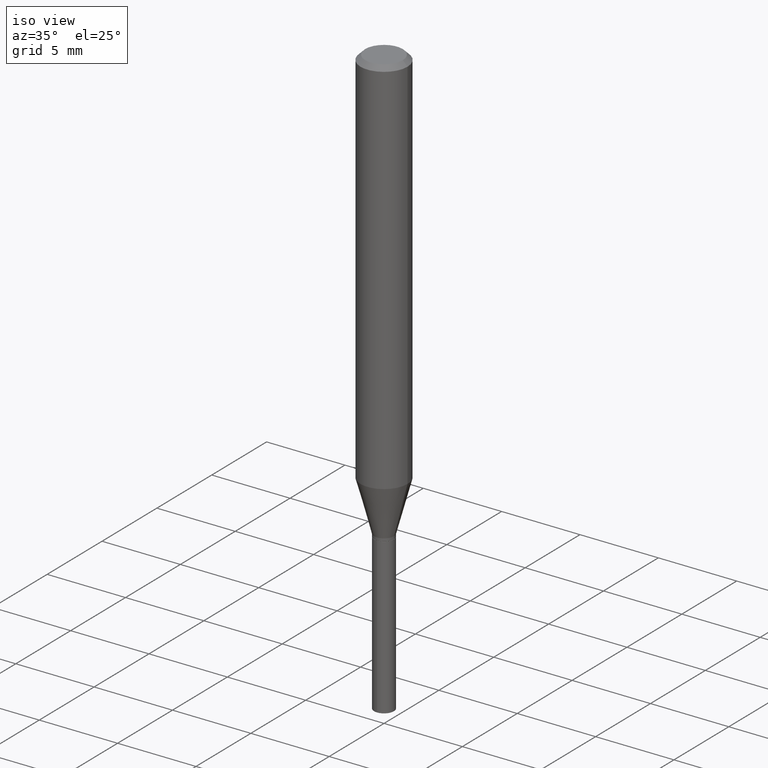
[diagram: clean part render]
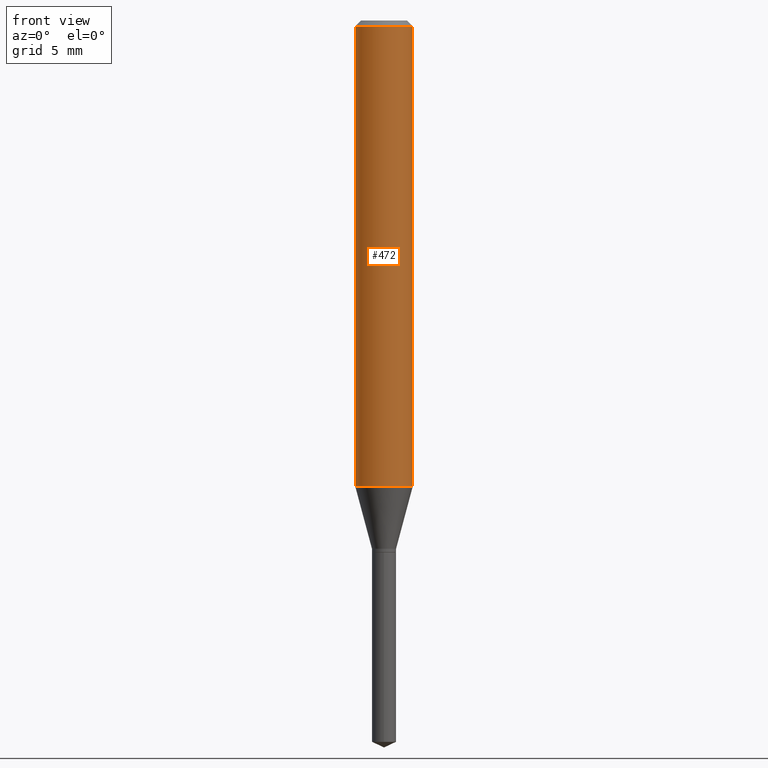
[diagram: tour spotlight — one face highlighted and labeled with its STEP entity id]
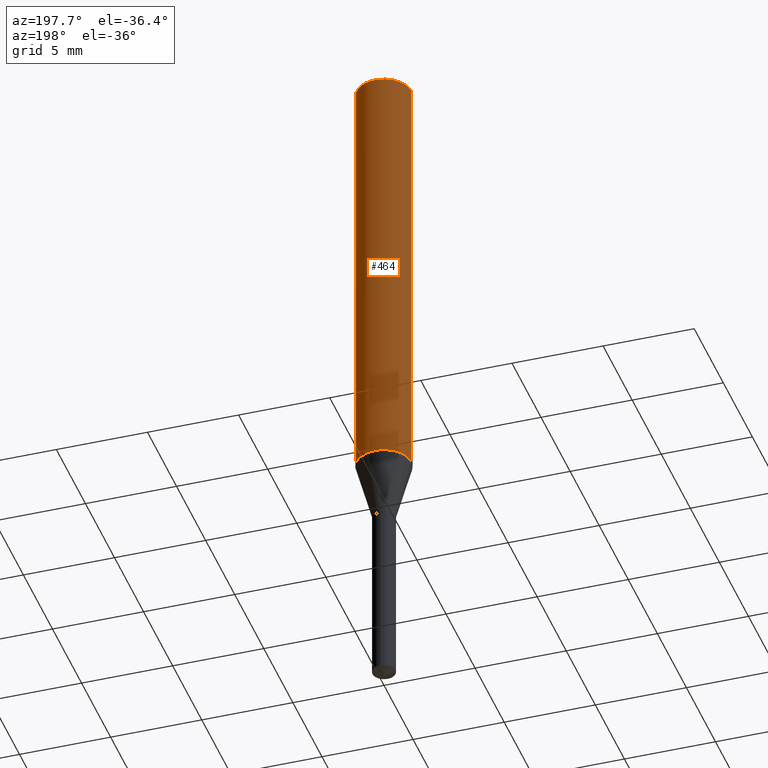
[diagram: tour spotlight — one face highlighted and labeled with its STEP entity id]
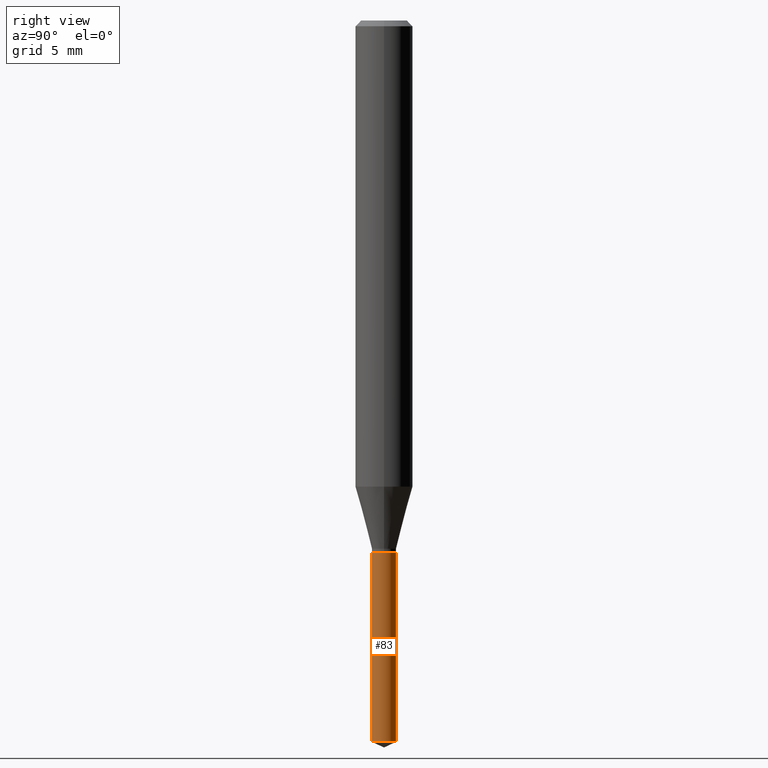
[diagram: tour spotlight — one face highlighted and labeled with its STEP entity id]
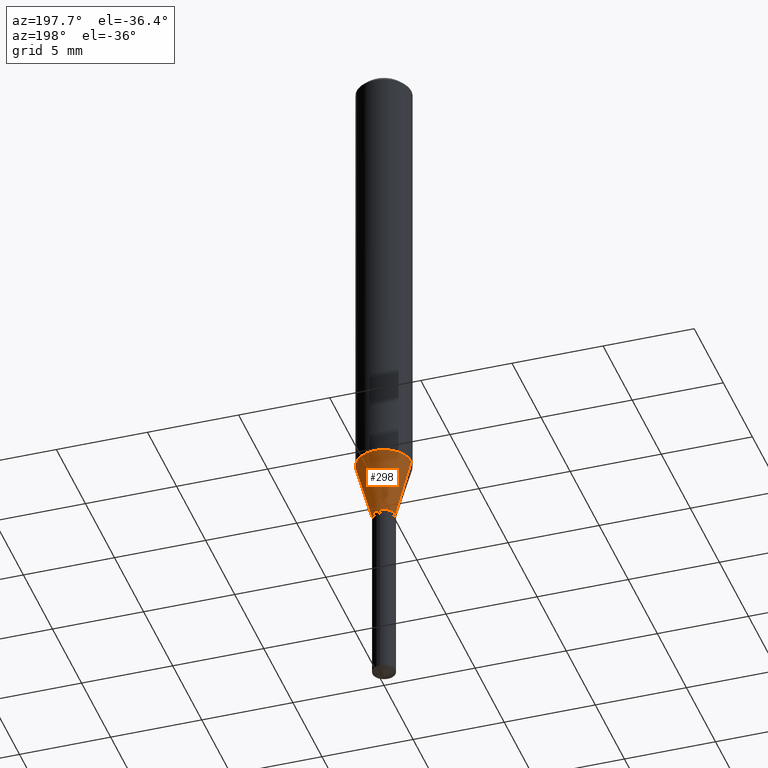
[diagram: tour spotlight — one face highlighted and labeled with its STEP entity id]
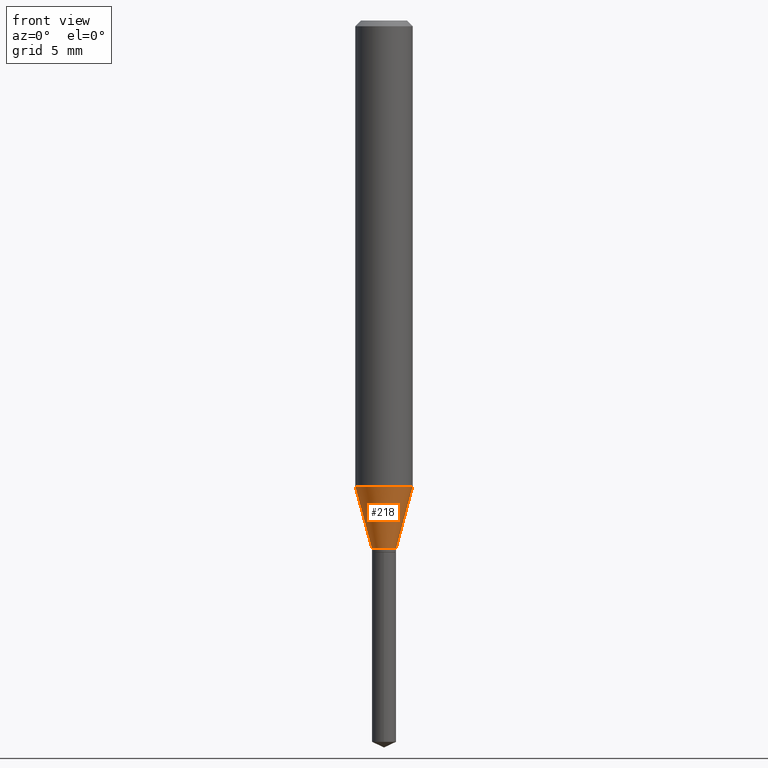
[diagram: tour spotlight — one face highlighted and labeled with its STEP entity id]
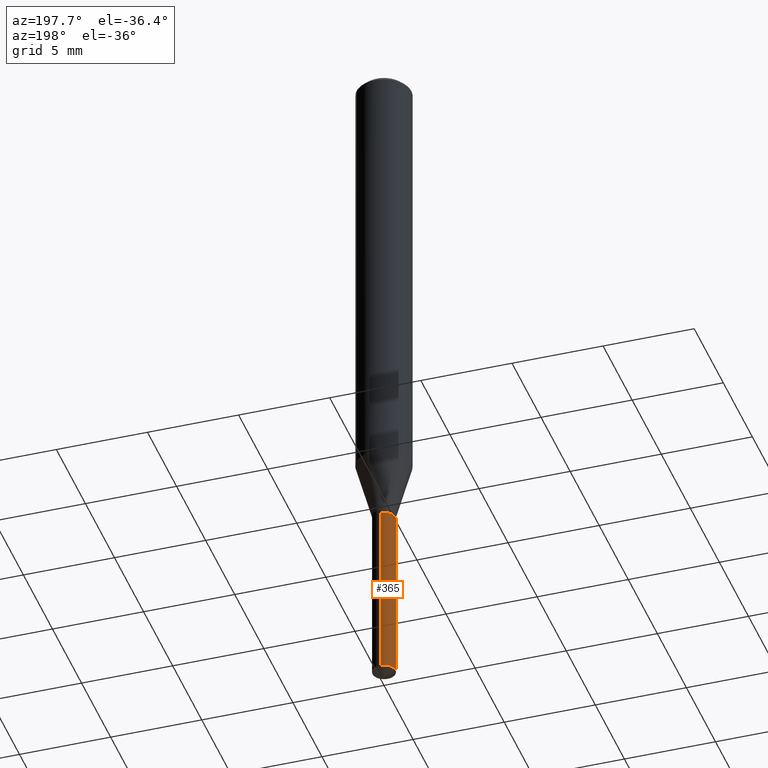
[diagram: tour spotlight — one face highlighted and labeled with its STEP entity id]
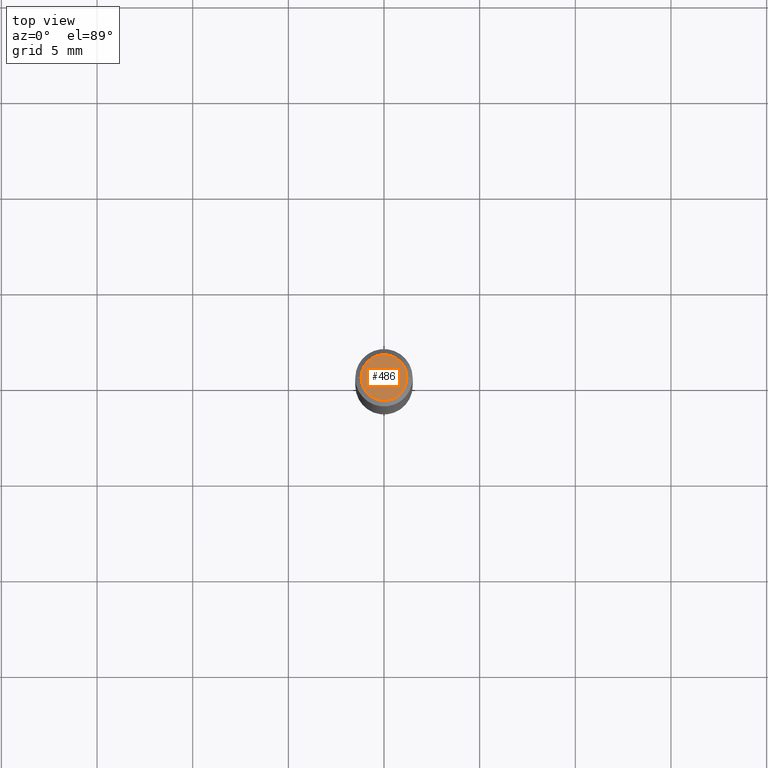
[diagram: tour spotlight — one face highlighted and labeled with its STEP entity id]
A machine part: a face-by-face anatomy tour. The part has 17 B-rep faces; the first image is the clean iso view, then the 7 largest visible faces are spotlighted one at a time (largest first), each with its STEP entity span.

Face 1 — front view, entity #472. In plain terms, the highlighted cylindrical surface (edge-blend (fillet) strip) has radius 1.4999 mm, axis along (-0, 0, 1).
Definition (entity closure, byte-faithful):
#9 = FACE_OUTER_BOUND ( 'NONE', #255, .T. ) ;
#14 = AXIS2_PLACEMENT_3D ( 'NONE', #457, #382, #122 ) ;
#27 = CIRCLE ( 'NONE', #220, 0.05904999999999999832 ) ;
#36 = CARTESIAN_POINT ( 'NONE',  ( 0.05904999999999999832, -4.535783407291118600E-16, -0.01181000000000007565 ) ) ;
#41 = DIRECTION ( 'NONE',  ( -2.445468806185136877E-29, 3.491481338843145188E-15, 1.000000000000000000 ) ) ;
#61 = AXIS2_PLACEMENT_3D ( 'NONE', #287, #249, #176 ) ;
#88 = EDGE_CURVE ( 'NONE', #490, #485, #257, .T. ) ;
#104 = DIRECTION ( 'NONE',  ( -2.445468806185136877E-29, 3.491481338843145188E-15, 1.000000000000000000 ) ) ;
#122 = DIRECTION ( 'NONE',  ( 1.000000000000000000, -6.982962677686266711E-15, 4.876176775795935793E-29 ) ) ;
#144 = ORIENTED_EDGE ( 'NONE', *, *, #232, .F. ) ;
#146 = ORIENTED_EDGE ( 'NONE', *, *, #225, .T. ) ;
#161 = ORIENTED_EDGE ( 'NONE', *, *, #445, .F. ) ;
#176 = DIRECTION ( 'NONE',  ( 1.000000000000000000, -6.982962677686266711E-15, 0.000000000000000000 ) ) ;
#220 = AXIS2_PLACEMENT_3D ( 'NONE', #338, #375, #254 ) ;
#225 = EDGE_CURVE ( 'NONE', #485, #309, #227, .T. ) ;
#227 = LINE ( 'NONE', #412, #332 ) ;
#232 = EDGE_CURVE ( 'NONE', #320, #309, #27, .T. ) ;
#249 = DIRECTION ( 'NONE',  ( -2.445468806185136597E-29, 3.491481338843145583E-15, 1.000000000000000000 ) ) ;
#254 = DIRECTION ( 'NONE',  ( 1.000000000000000000, -6.982962677686266711E-15, 0.000000000000000000 ) ) ;
#255 = EDGE_LOOP ( 'NONE', ( #161, #340, #146, #144 ) ) ;
#257 = CIRCLE ( 'NONE', #61, 0.05905000000000011628 ) ;
#267 = CARTESIAN_POINT ( 'NONE',  ( -0.05905000000000011628, -2.929723166044281078E-15, -0.9592772598407656170 ) ) ;
#272 = CARTESIAN_POINT ( 'NONE',  ( 0.05905000000000011628, -3.761642597627995886E-15, -0.9592772598407656170 ) ) ;
#287 = CARTESIAN_POINT ( 'NONE',  ( 2.345882615423346285E-29, -3.349298651510620571E-15, -0.9592772598407656170 ) ) ;
#309 = VERTEX_POINT ( 'NONE', #36 ) ;
#311 = CYLINDRICAL_SURFACE ( 'NONE', #14, 0.05905000000000006077 ) ;
#320 = VERTEX_POINT ( 'NONE', #414 ) ;
#332 = VECTOR ( 'NONE', #104, 39.37007874015748143 ) ;
#338 = CARTESIAN_POINT ( 'NONE',  ( 2.888098660104664642E-31, -4.123439461173780879E-17, -0.01181000000000007565 ) ) ;
#340 = ORIENTED_EDGE ( 'NONE', *, *, #88, .T. ) ;
#353 = CARTESIAN_POINT ( 'NONE',  ( -0.05905000000000006077, 4.195754854663395916E-16, -2.904631170795524694E-30 ) ) ;
#375 = DIRECTION ( 'NONE',  ( -2.445468806185136597E-29, 3.491481338843145583E-15, 1.000000000000000000 ) ) ;
#382 = DIRECTION ( 'NONE',  ( -2.445468806185136597E-29, 3.491481338843145583E-15, 1.000000000000000000 ) ) ;
#412 = CARTESIAN_POINT ( 'NONE',  ( 0.05905000000000006077, -4.123439461173744764E-16, 2.879382386107503023E-30 ) ) ;
#414 = CARTESIAN_POINT ( 'NONE',  ( -0.05904999999999999832, -1.275691037594838671E-15, -0.01181000000000007565 ) ) ;
#417 = LINE ( 'NONE', #353, #432 ) ;
#432 = VECTOR ( 'NONE', #41, 39.37007874015748143 ) ;
#445 = EDGE_CURVE ( 'NONE', #490, #320, #417, .T. ) ;
#457 = CARTESIAN_POINT ( 'NONE',  ( 0.000000000000000000, 0.000000000000000000, 0.000000000000000000 ) ) ;
#472 = ADVANCED_FACE ( 'NONE', ( #9 ), #311, .T. ) ;
#485 = VERTEX_POINT ( 'NONE', #272 ) ;
#490 = VERTEX_POINT ( 'NONE', #267 ) ;

Face 2 — auxiliary view, entity #464. In plain terms, the highlighted cylindrical surface (edge-blend (fillet) strip) has radius 1.4999 mm, axis along (-0, 0, 1).
Definition (entity closure, byte-faithful):
#2 = DIRECTION ( 'NONE',  ( -2.445468806185136597E-29, 3.491481338843145583E-15, 1.000000000000000000 ) ) ;
#36 = CARTESIAN_POINT ( 'NONE',  ( 0.05904999999999999832, -4.535783407291118600E-16, -0.01181000000000007565 ) ) ;
#41 = DIRECTION ( 'NONE',  ( -2.445468806185136877E-29, 3.491481338843145188E-15, 1.000000000000000000 ) ) ;
#49 = EDGE_CURVE ( 'NONE', #309, #320, #250, .T. ) ;
#93 = ORIENTED_EDGE ( 'NONE', *, *, #49, .F. ) ;
#97 = DIRECTION ( 'NONE',  ( -2.445468806185136597E-29, 3.491481338843145583E-15, 1.000000000000000000 ) ) ;
#104 = DIRECTION ( 'NONE',  ( -2.445468806185136877E-29, 3.491481338843145188E-15, 1.000000000000000000 ) ) ;
#132 = CIRCLE ( 'NONE', #197, 0.05905000000000011628 ) ;
#157 = DIRECTION ( 'NONE',  ( 1.000000000000000000, -6.982962677686266711E-15, 4.876176775795935793E-29 ) ) ;
#197 = AXIS2_PLACEMENT_3D ( 'NONE', #388, #2, #385 ) ;
#214 = AXIS2_PLACEMENT_3D ( 'NONE', #356, #97, #359 ) ;
#225 = EDGE_CURVE ( 'NONE', #485, #309, #227, .T. ) ;
#227 = LINE ( 'NONE', #412, #332 ) ;
#229 = CARTESIAN_POINT ( 'NONE',  ( 0.000000000000000000, 0.000000000000000000, 0.000000000000000000 ) ) ;
#250 = CIRCLE ( 'NONE', #214, 0.05904999999999999832 ) ;
#261 = ORIENTED_EDGE ( 'NONE', *, *, #445, .T. ) ;
#267 = CARTESIAN_POINT ( 'NONE',  ( -0.05905000000000011628, -2.929723166044281078E-15, -0.9592772598407656170 ) ) ;
#269 = FACE_OUTER_BOUND ( 'NONE', #452, .T. ) ;
#272 = CARTESIAN_POINT ( 'NONE',  ( 0.05905000000000011628, -3.761642597627995886E-15, -0.9592772598407656170 ) ) ;
#309 = VERTEX_POINT ( 'NONE', #36 ) ;
#318 = AXIS2_PLACEMENT_3D ( 'NONE', #229, #351, #157 ) ;
#320 = VERTEX_POINT ( 'NONE', #414 ) ;
#332 = VECTOR ( 'NONE', #104, 39.37007874015748143 ) ;
#336 = ORIENTED_EDGE ( 'NONE', *, *, #225, .F. ) ;
#348 = CYLINDRICAL_SURFACE ( 'NONE', #318, 0.05905000000000006077 ) ;
#351 = DIRECTION ( 'NONE',  ( -2.445468806185136597E-29, 3.491481338843145583E-15, 1.000000000000000000 ) ) ;
#353 = CARTESIAN_POINT ( 'NONE',  ( -0.05905000000000006077, 4.195754854663395916E-16, -2.904631170795524694E-30 ) ) ;
#356 = CARTESIAN_POINT ( 'NONE',  ( 2.888098660104664642E-31, -4.123439461173780879E-17, -0.01181000000000007565 ) ) ;
#359 = DIRECTION ( 'NONE',  ( 1.000000000000000000, -6.982962677686266711E-15, 0.000000000000000000 ) ) ;
#361 = ORIENTED_EDGE ( 'NONE', *, *, #402, .T. ) ;
#385 = DIRECTION ( 'NONE',  ( 1.000000000000000000, -6.982962677686266711E-15, 0.000000000000000000 ) ) ;
#388 = CARTESIAN_POINT ( 'NONE',  ( 2.345882615423346285E-29, -3.349298651510620571E-15, -0.9592772598407656170 ) ) ;
#402 = EDGE_CURVE ( 'NONE', #485, #490, #132, .T. ) ;
#412 = CARTESIAN_POINT ( 'NONE',  ( 0.05905000000000006077, -4.123439461173744764E-16, 2.879382386107503023E-30 ) ) ;
#414 = CARTESIAN_POINT ( 'NONE',  ( -0.05904999999999999832, -1.275691037594838671E-15, -0.01181000000000007565 ) ) ;
#417 = LINE ( 'NONE', #353, #432 ) ;
#432 = VECTOR ( 'NONE', #41, 39.37007874015748143 ) ;
#445 = EDGE_CURVE ( 'NONE', #490, #320, #417, .T. ) ;
#452 = EDGE_LOOP ( 'NONE', ( #361, #261, #93, #336 ) ) ;
#464 = ADVANCED_FACE ( 'NONE', ( #269 ), #348, .T. ) ;
#485 = VERTEX_POINT ( 'NONE', #272 ) ;
#490 = VERTEX_POINT ( 'NONE', #267 ) ;

Face 3 — right view, entity #83. In plain terms, the highlighted cylindrical surface (edge-blend (fillet) strip) has radius 0.6299 mm, axis along (-0, 0, 1).
Definition (entity closure, byte-faithful):
#1 = LINE ( 'NONE', #91, #456 ) ;
#7 = DIRECTION ( 'NONE',  ( -6.982962677686265922E-15, -1.000000000000000000, 0.000000000000000000 ) ) ;
#8 = EDGE_LOOP ( 'NONE', ( #51, #186, #349, #178 ) ) ;
#38 = CARTESIAN_POINT ( 'NONE',  ( 2.676565608369631794E-29, -3.821426325363822773E-15, -1.094499999999999806 ) ) ;
#43 = CARTESIAN_POINT ( 'NONE',  ( 1.762145984685411522E-16, 0.02479999999999482271, -1.484535570077756272 ) ) ;
#51 = ORIENTED_EDGE ( 'NONE', *, *, #394, .T. ) ;
#78 = EDGE_CURVE ( 'NONE', #408, #458, #169, .T. ) ;
#83 = ADVANCED_FACE ( 'NONE', ( #213 ), #135, .T. ) ;
#87 = CARTESIAN_POINT ( 'NONE',  ( 3.630385977618317667E-29, -5.183227453116567846E-15, -1.484535570077756272 ) ) ;
#91 = CARTESIAN_POINT ( 'NONE',  ( -1.731774744065926436E-16, -0.02480000000000381899, -1.094499999999999806 ) ) ;
#100 = DIRECTION ( 'NONE',  ( -2.445470214571802396E-29, 3.491479321953280158E-15, 1.000000000000000000 ) ) ;
#110 = AXIS2_PLACEMENT_3D ( 'NONE', #87, #230, #7 ) ;
#118 = DIRECTION ( 'NONE',  ( -6.982962677686265922E-15, -1.000000000000000000, 5.507758051742466478E-15 ) ) ;
#135 = CYLINDRICAL_SURFACE ( 'NONE', #393, 0.02479999999999999913 ) ;
#163 = CARTESIAN_POINT ( 'NONE',  ( -1.731774744065926436E-16, -0.02480000000000381899, -1.094499999999999806 ) ) ;
#169 = LINE ( 'NONE', #246, #173 ) ;
#172 = DIRECTION ( 'NONE',  ( -2.445470214571802116E-29, 3.491479321953280158E-15, 1.000000000000000000 ) ) ;
#173 = VECTOR ( 'NONE', #100, 39.37007874015748143 ) ;
#178 = ORIENTED_EDGE ( 'NONE', *, *, #415, .F. ) ;
#186 = ORIENTED_EDGE ( 'NONE', *, *, #78, .T. ) ;
#198 = DIRECTION ( 'NONE',  ( -2.445470214571802396E-29, 3.491479321953280158E-15, 1.000000000000000000 ) ) ;
#213 = FACE_OUTER_BOUND ( 'NONE', #8, .T. ) ;
#230 = DIRECTION ( 'NONE',  ( -2.445470214571802116E-29, 3.491479321953280158E-15, 1.000000000000000000 ) ) ;
#233 = DIRECTION ( 'NONE',  ( -2.445470214571802116E-29, 3.491479321953280158E-15, 1.000000000000000000 ) ) ;
#244 = CARTESIAN_POINT ( 'NONE',  ( 2.676565608369631794E-29, -3.821426325363822773E-15, -1.094499999999999806 ) ) ;
#246 = CARTESIAN_POINT ( 'NONE',  ( 1.762145984685315626E-16, 0.02479999999999617927, -1.094500000000000028 ) ) ;
#263 = CARTESIAN_POINT ( 'NONE',  ( 1.762145984685411522E-16, 0.02479999999999617927, -1.094500000000000028 ) ) ;
#284 = VERTEX_POINT ( 'NONE', #368 ) ;
#294 = CIRCLE ( 'NONE', #404, 0.02479999999999999913 ) ;
#349 = ORIENTED_EDGE ( 'NONE', *, *, #381, .F. ) ;
#364 = DIRECTION ( 'NONE',  ( -6.982962677686265922E-15, -1.000000000000000000, 5.507758051742466478E-15 ) ) ;
#368 = CARTESIAN_POINT ( 'NONE',  ( -1.731774744065831280E-16, -0.02480000000000518595, -1.484535570077756272 ) ) ;
#378 = VERTEX_POINT ( 'NONE', #163 ) ;
#381 = EDGE_CURVE ( 'NONE', #378, #458, #294, .T. ) ;
#393 = AXIS2_PLACEMENT_3D ( 'NONE', #244, #172, #364 ) ;
#394 = EDGE_CURVE ( 'NONE', #284, #408, #440, .T. ) ;
#404 = AXIS2_PLACEMENT_3D ( 'NONE', #38, #233, #118 ) ;
#408 = VERTEX_POINT ( 'NONE', #43 ) ;
#415 = EDGE_CURVE ( 'NONE', #284, #378, #1, .T. ) ;
#440 = CIRCLE ( 'NONE', #110, 0.02479999999999999913 ) ;
#456 = VECTOR ( 'NONE', #198, 39.37007874015748143 ) ;
#458 = VERTEX_POINT ( 'NONE', #263 ) ;

Face 4 — auxiliary view, entity #298. In plain terms, the highlighted conical surface has half-angle 15 deg.
Definition (entity closure, byte-faithful):
#2 = DIRECTION ( 'NONE',  ( -2.445468806185136597E-29, 3.491481338843145583E-15, 1.000000000000000000 ) ) ;
#12 = EDGE_LOOP ( 'NONE', ( #188, #165, #390, #465 ) ) ;
#16 = CARTESIAN_POINT ( 'NONE',  ( -0.02479999999999998178, -3.619374764987879360E-15, -1.087099999999999955 ) ) ;
#18 = DIRECTION ( 'NONE',  ( -0.2588190451025211281, 5.211531920934547886E-15, 0.9659258262890679791 ) ) ;
#24 = DIRECTION ( 'NONE',  ( 1.000000000000000000, -6.982962677686263555E-15, 0.000000000000000000 ) ) ;
#30 = DIRECTION ( 'NONE',  ( -2.445468806185136597E-29, 3.491481338843145583E-15, 1.000000000000000000 ) ) ;
#35 = VECTOR ( 'NONE', #401, 39.37007874015748854 ) ;
#44 = CIRCLE ( 'NONE', #125, 0.02479999999999998178 ) ;
#52 = DIRECTION ( 'NONE',  ( -2.445468806185136597E-29, 3.491481338843145583E-15, 1.000000000000000000 ) ) ;
#65 = EDGE_CURVE ( 'NONE', #374, #490, #430, .T. ) ;
#66 = CARTESIAN_POINT ( 'NONE',  ( 0.02479999999999998178, -3.968766837863003197E-15, -1.087099999999999955 ) ) ;
#74 = EDGE_CURVE ( 'NONE', #193, #485, #95, .T. ) ;
#95 = LINE ( 'NONE', #167, #35 ) ;
#106 = CARTESIAN_POINT ( 'NONE',  ( 2.658469139203861920E-29, -3.795589363456383732E-15, -1.087099999999999955 ) ) ;
#125 = AXIS2_PLACEMENT_3D ( 'NONE', #290, #52, #24 ) ;
#132 = CIRCLE ( 'NONE', #197, 0.05905000000000011628 ) ;
#133 = EDGE_CURVE ( 'NONE', #193, #374, #44, .T. ) ;
#156 = CONICAL_SURFACE ( 'NONE', #347, 0.02479999999999998178, 0.2617993877991498519 ) ;
#165 = ORIENTED_EDGE ( 'NONE', *, *, #65, .T. ) ;
#167 = CARTESIAN_POINT ( 'NONE',  ( 0.02479999999999998178, -3.968766837863003197E-15, -1.087099999999999955 ) ) ;
#187 = FACE_OUTER_BOUND ( 'NONE', #12, .T. ) ;
#188 = ORIENTED_EDGE ( 'NONE', *, *, #133, .T. ) ;
#193 = VERTEX_POINT ( 'NONE', #66 ) ;
#197 = AXIS2_PLACEMENT_3D ( 'NONE', #388, #2, #385 ) ;
#256 = DIRECTION ( 'NONE',  ( 1.000000000000000000, -6.982962677686263555E-15, 0.000000000000000000 ) ) ;
#267 = CARTESIAN_POINT ( 'NONE',  ( -0.05905000000000011628, -2.929723166044281078E-15, -0.9592772598407656170 ) ) ;
#272 = CARTESIAN_POINT ( 'NONE',  ( 0.05905000000000011628, -3.761642597627995886E-15, -0.9592772598407656170 ) ) ;
#290 = CARTESIAN_POINT ( 'NONE',  ( 2.658469139203861920E-29, -3.795589363456383732E-15, -1.087099999999999955 ) ) ;
#298 = ADVANCED_FACE ( 'NONE', ( #187 ), #156, .T. ) ;
#347 = AXIS2_PLACEMENT_3D ( 'NONE', #106, #30, #256 ) ;
#374 = VERTEX_POINT ( 'NONE', #424 ) ;
#379 = VECTOR ( 'NONE', #18, 39.37007874015748854 ) ;
#385 = DIRECTION ( 'NONE',  ( 1.000000000000000000, -6.982962677686266711E-15, 0.000000000000000000 ) ) ;
#388 = CARTESIAN_POINT ( 'NONE',  ( 2.345882615423346285E-29, -3.349298651510620571E-15, -0.9592772598407656170 ) ) ;
#390 = ORIENTED_EDGE ( 'NONE', *, *, #402, .F. ) ;
#401 = DIRECTION ( 'NONE',  ( 0.2588190451025211281, 1.565188264969622954E-15, 0.9659258262890679791 ) ) ;
#402 = EDGE_CURVE ( 'NONE', #485, #490, #132, .T. ) ;
#424 = CARTESIAN_POINT ( 'NONE',  ( -0.02479999999999998178, -3.631420375606887340E-15, -1.087099999999999955 ) ) ;
#430 = LINE ( 'NONE', #16, #379 ) ;
#465 = ORIENTED_EDGE ( 'NONE', *, *, #74, .F. ) ;
#485 = VERTEX_POINT ( 'NONE', #272 ) ;
#490 = VERTEX_POINT ( 'NONE', #267 ) ;

Face 5 — front view, entity #218. In plain terms, the highlighted conical surface has half-angle 15 deg.
Definition (entity closure, byte-faithful):
#16 = CARTESIAN_POINT ( 'NONE',  ( -0.02479999999999998178, -3.619374764987879360E-15, -1.087099999999999955 ) ) ;
#18 = DIRECTION ( 'NONE',  ( -0.2588190451025211281, 5.211531920934547886E-15, 0.9659258262890679791 ) ) ;
#26 = DIRECTION ( 'NONE',  ( -2.445468806185136597E-29, 3.491481338843145583E-15, 1.000000000000000000 ) ) ;
#35 = VECTOR ( 'NONE', #401, 39.37007874015748854 ) ;
#53 = AXIS2_PLACEMENT_3D ( 'NONE', #191, #26, #143 ) ;
#61 = AXIS2_PLACEMENT_3D ( 'NONE', #287, #249, #176 ) ;
#65 = EDGE_CURVE ( 'NONE', #374, #490, #430, .T. ) ;
#66 = CARTESIAN_POINT ( 'NONE',  ( 0.02479999999999998178, -3.968766837863003197E-15, -1.087099999999999955 ) ) ;
#74 = EDGE_CURVE ( 'NONE', #193, #485, #95, .T. ) ;
#86 = ORIENTED_EDGE ( 'NONE', *, *, #204, .T. ) ;
#88 = EDGE_CURVE ( 'NONE', #490, #485, #257, .T. ) ;
#95 = LINE ( 'NONE', #167, #35 ) ;
#121 = ORIENTED_EDGE ( 'NONE', *, *, #74, .T. ) ;
#143 = DIRECTION ( 'NONE',  ( 1.000000000000000000, -6.982962677686263555E-15, 0.000000000000000000 ) ) ;
#167 = CARTESIAN_POINT ( 'NONE',  ( 0.02479999999999998178, -3.968766837863003197E-15, -1.087099999999999955 ) ) ;
#176 = DIRECTION ( 'NONE',  ( 1.000000000000000000, -6.982962677686266711E-15, 0.000000000000000000 ) ) ;
#184 = FACE_OUTER_BOUND ( 'NONE', #444, .T. ) ;
#185 = CARTESIAN_POINT ( 'NONE',  ( 2.658469139203861920E-29, -3.795589363456383732E-15, -1.087099999999999955 ) ) ;
#191 = CARTESIAN_POINT ( 'NONE',  ( 2.658469139203861920E-29, -3.795589363456383732E-15, -1.087099999999999955 ) ) ;
#193 = VERTEX_POINT ( 'NONE', #66 ) ;
#204 = EDGE_CURVE ( 'NONE', #374, #193, #363, .T. ) ;
#206 = CONICAL_SURFACE ( 'NONE', #53, 0.02479999999999998178, 0.2617993877991498519 ) ;
#217 = DIRECTION ( 'NONE',  ( 1.000000000000000000, -6.982962677686263555E-15, 0.000000000000000000 ) ) ;
#218 = ADVANCED_FACE ( 'NONE', ( #184 ), #206, .T. ) ;
#249 = DIRECTION ( 'NONE',  ( -2.445468806185136597E-29, 3.491481338843145583E-15, 1.000000000000000000 ) ) ;
#257 = CIRCLE ( 'NONE', #61, 0.05905000000000011628 ) ;
#260 = DIRECTION ( 'NONE',  ( -2.445468806185136597E-29, 3.491481338843145583E-15, 1.000000000000000000 ) ) ;
#267 = CARTESIAN_POINT ( 'NONE',  ( -0.05905000000000011628, -2.929723166044281078E-15, -0.9592772598407656170 ) ) ;
#272 = CARTESIAN_POINT ( 'NONE',  ( 0.05905000000000011628, -3.761642597627995886E-15, -0.9592772598407656170 ) ) ;
#273 = AXIS2_PLACEMENT_3D ( 'NONE', #185, #260, #217 ) ;
#287 = CARTESIAN_POINT ( 'NONE',  ( 2.345882615423346285E-29, -3.349298651510620571E-15, -0.9592772598407656170 ) ) ;
#354 = ORIENTED_EDGE ( 'NONE', *, *, #88, .F. ) ;
#363 = CIRCLE ( 'NONE', #273, 0.02479999999999998178 ) ;
#374 = VERTEX_POINT ( 'NONE', #424 ) ;
#379 = VECTOR ( 'NONE', #18, 39.37007874015748854 ) ;
#401 = DIRECTION ( 'NONE',  ( 0.2588190451025211281, 1.565188264969622954E-15, 0.9659258262890679791 ) ) ;
#423 = ORIENTED_EDGE ( 'NONE', *, *, #65, .F. ) ;
#424 = CARTESIAN_POINT ( 'NONE',  ( -0.02479999999999998178, -3.631420375606887340E-15, -1.087099999999999955 ) ) ;
#430 = LINE ( 'NONE', #16, #379 ) ;
#444 = EDGE_LOOP ( 'NONE', ( #423, #86, #121, #354 ) ) ;
#485 = VERTEX_POINT ( 'NONE', #272 ) ;
#490 = VERTEX_POINT ( 'NONE', #267 ) ;

Face 6 — auxiliary view, entity #365. In plain terms, the highlighted cylindrical surface (edge-blend (fillet) strip) has radius 0.6299 mm, axis along (-0, 0, 1).
Definition (entity closure, byte-faithful):
#1 = LINE ( 'NONE', #91, #456 ) ;
#43 = CARTESIAN_POINT ( 'NONE',  ( 1.762145984685411522E-16, 0.02479999999999482271, -1.484535570077756272 ) ) ;
#73 = CARTESIAN_POINT ( 'NONE',  ( 2.676565608369631794E-29, -3.821426325363822773E-15, -1.094499999999999806 ) ) ;
#77 = ORIENTED_EDGE ( 'NONE', *, *, #292, .T. ) ;
#78 = EDGE_CURVE ( 'NONE', #408, #458, #169, .T. ) ;
#81 = AXIS2_PLACEMENT_3D ( 'NONE', #422, #453, #391 ) ;
#84 = CYLINDRICAL_SURFACE ( 'NONE', #81, 0.02479999999999999913 ) ;
#91 = CARTESIAN_POINT ( 'NONE',  ( -1.731774744065926436E-16, -0.02480000000000381899, -1.094499999999999806 ) ) ;
#100 = DIRECTION ( 'NONE',  ( -2.445470214571802396E-29, 3.491479321953280158E-15, 1.000000000000000000 ) ) ;
#152 = CIRCLE ( 'NONE', #174, 0.02479999999999999913 ) ;
#159 = ORIENTED_EDGE ( 'NONE', *, *, #289, .F. ) ;
#163 = CARTESIAN_POINT ( 'NONE',  ( -1.731774744065926436E-16, -0.02480000000000381899, -1.094499999999999806 ) ) ;
#169 = LINE ( 'NONE', #246, #173 ) ;
#173 = VECTOR ( 'NONE', #100, 39.37007874015748143 ) ;
#174 = AXIS2_PLACEMENT_3D ( 'NONE', #406, #370, #222 ) ;
#198 = DIRECTION ( 'NONE',  ( -2.445470214571802396E-29, 3.491479321953280158E-15, 1.000000000000000000 ) ) ;
#211 = ORIENTED_EDGE ( 'NONE', *, *, #78, .F. ) ;
#222 = DIRECTION ( 'NONE',  ( -6.982962677686265922E-15, -1.000000000000000000, 0.000000000000000000 ) ) ;
#224 = DIRECTION ( 'NONE',  ( -6.982962677686265922E-15, -1.000000000000000000, 5.507758051742466478E-15 ) ) ;
#239 = EDGE_LOOP ( 'NONE', ( #211, #77, #481, #159 ) ) ;
#246 = CARTESIAN_POINT ( 'NONE',  ( 1.762145984685315626E-16, 0.02479999999999617927, -1.094500000000000028 ) ) ;
#251 = AXIS2_PLACEMENT_3D ( 'NONE', #73, #295, #224 ) ;
#263 = CARTESIAN_POINT ( 'NONE',  ( 1.762145984685411522E-16, 0.02479999999999617927, -1.094500000000000028 ) ) ;
#265 = CIRCLE ( 'NONE', #251, 0.02479999999999999913 ) ;
#284 = VERTEX_POINT ( 'NONE', #368 ) ;
#289 = EDGE_CURVE ( 'NONE', #458, #378, #265, .T. ) ;
#292 = EDGE_CURVE ( 'NONE', #408, #284, #152, .T. ) ;
#295 = DIRECTION ( 'NONE',  ( -2.445470214571802116E-29, 3.491479321953280158E-15, 1.000000000000000000 ) ) ;
#365 = ADVANCED_FACE ( 'NONE', ( #420 ), #84, .T. ) ;
#368 = CARTESIAN_POINT ( 'NONE',  ( -1.731774744065831280E-16, -0.02480000000000518595, -1.484535570077756272 ) ) ;
#370 = DIRECTION ( 'NONE',  ( -2.445470214571802116E-29, 3.491479321953280158E-15, 1.000000000000000000 ) ) ;
#378 = VERTEX_POINT ( 'NONE', #163 ) ;
#391 = DIRECTION ( 'NONE',  ( -6.982962677686265922E-15, -1.000000000000000000, 5.507758051742466478E-15 ) ) ;
#406 = CARTESIAN_POINT ( 'NONE',  ( 3.630385977618317667E-29, -5.183227453116567846E-15, -1.484535570077756272 ) ) ;
#408 = VERTEX_POINT ( 'NONE', #43 ) ;
#415 = EDGE_CURVE ( 'NONE', #284, #378, #1, .T. ) ;
#420 = FACE_OUTER_BOUND ( 'NONE', #239, .T. ) ;
#422 = CARTESIAN_POINT ( 'NONE',  ( 2.676565608369631794E-29, -3.821426325363822773E-15, -1.094499999999999806 ) ) ;
#453 = DIRECTION ( 'NONE',  ( -2.445470214571802116E-29, 3.491479321953280158E-15, 1.000000000000000000 ) ) ;
#456 = VECTOR ( 'NONE', #198, 39.37007874015748143 ) ;
#458 = VERTEX_POINT ( 'NONE', #263 ) ;
#481 = ORIENTED_EDGE ( 'NONE', *, *, #415, .T. ) ;

Face 7 — top view, entity #486. In plain terms, the highlighted planar face has unit normal (0, -0, -1).
Definition (entity closure, byte-faithful):
#48 = ORIENTED_EDGE ( 'NONE', *, *, #147, .T. ) ;
#64 = DIRECTION ( 'NONE',  ( -2.445468806185136597E-29, 3.491481338843145583E-15, 1.000000000000000000 ) ) ;
#115 = EDGE_CURVE ( 'NONE', #278, #119, #293, .T. ) ;
#116 = EDGE_LOOP ( 'NONE', ( #421, #48 ) ) ;
#119 = VERTEX_POINT ( 'NONE', #138 ) ;
#138 = CARTESIAN_POINT ( 'NONE',  ( 0.04724000000000000421, -3.852183633974369345E-16, -3.380025165621689721E-19 ) ) ;
#147 = EDGE_CURVE ( 'NONE', #119, #278, #228, .T. ) ;
#160 = FACE_OUTER_BOUND ( 'NONE', #116, .T. ) ;
#182 = AXIS2_PLACEMENT_3D ( 'NONE', #405, #64, #366 ) ;
#192 = PLANE ( 'NONE',  #243 ) ;
#219 = CARTESIAN_POINT ( 'NONE',  ( -0.04724000000000000421, 3.504923541997677355E-16, -3.380025165670481712E-19 ) ) ;
#228 = CIRCLE ( 'NONE', #182, 0.04724000000000000421 ) ;
#238 = DIRECTION ( 'NONE',  ( -1.000000000000000000, 6.982962677686265922E-15, -4.876176775795935793E-29 ) ) ;
#243 = AXIS2_PLACEMENT_3D ( 'NONE', #315, #461, #238 ) ;
#278 = VERTEX_POINT ( 'NONE', #219 ) ;
#293 = CIRCLE ( 'NONE', #317, 0.04724000000000000421 ) ;
#315 = CARTESIAN_POINT ( 'NONE',  ( 4.132873053354867254E-48, -5.900647395337818946E-34, -1.690012582823346072E-19 ) ) ;
#317 = AXIS2_PLACEMENT_3D ( 'NONE', #397, #474, #323 ) ;
#323 = DIRECTION ( 'NONE',  ( 1.000000000000000000, -6.982962677686266711E-15, 4.876185090822587894E-29 ) ) ;
#366 = DIRECTION ( 'NONE',  ( 1.000000000000000000, -6.982962677686266711E-15, 4.876185090822587894E-29 ) ) ;
#397 = CARTESIAN_POINT ( 'NONE',  ( 8.265746106709734507E-48, -1.180129479067563789E-33, -3.380025165646692144E-19 ) ) ;
#405 = CARTESIAN_POINT ( 'NONE',  ( 8.265746106709734507E-48, -1.180129479067563789E-33, -3.380025165646692144E-19 ) ) ;
#421 = ORIENTED_EDGE ( 'NONE', *, *, #115, .T. ) ;
#461 = DIRECTION ( 'NONE',  ( 2.438088387897960049E-29, -3.491481338843145188E-15, -1.000000000000000000 ) ) ;
#474 = DIRECTION ( 'NONE',  ( -2.445468806185136597E-29, 3.491481338843145583E-15, 1.000000000000000000 ) ) ;
#486 = ADVANCED_FACE ( 'NONE', ( #160 ), #192, .F. ) ;